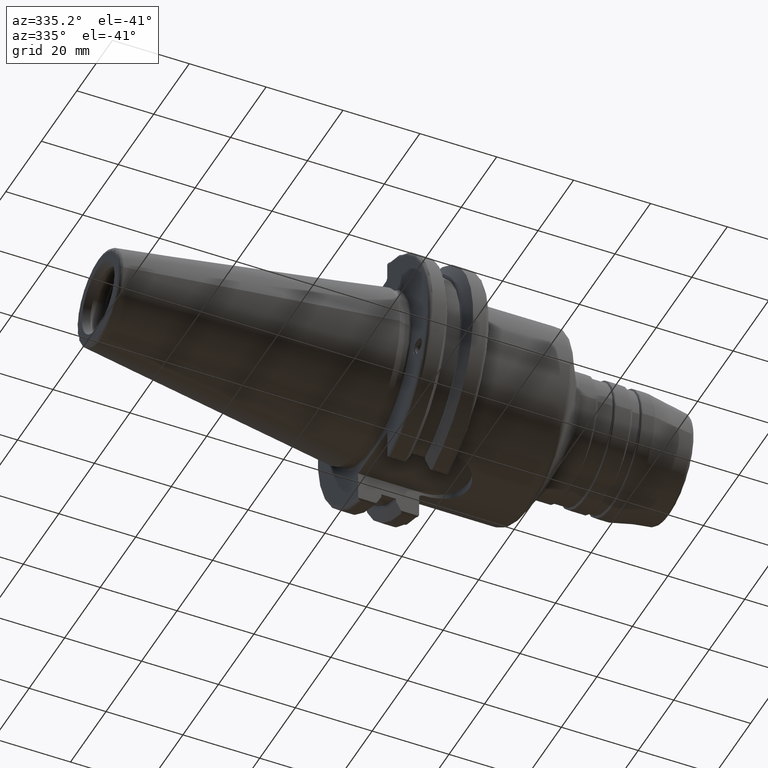
[diagram: clean part render]
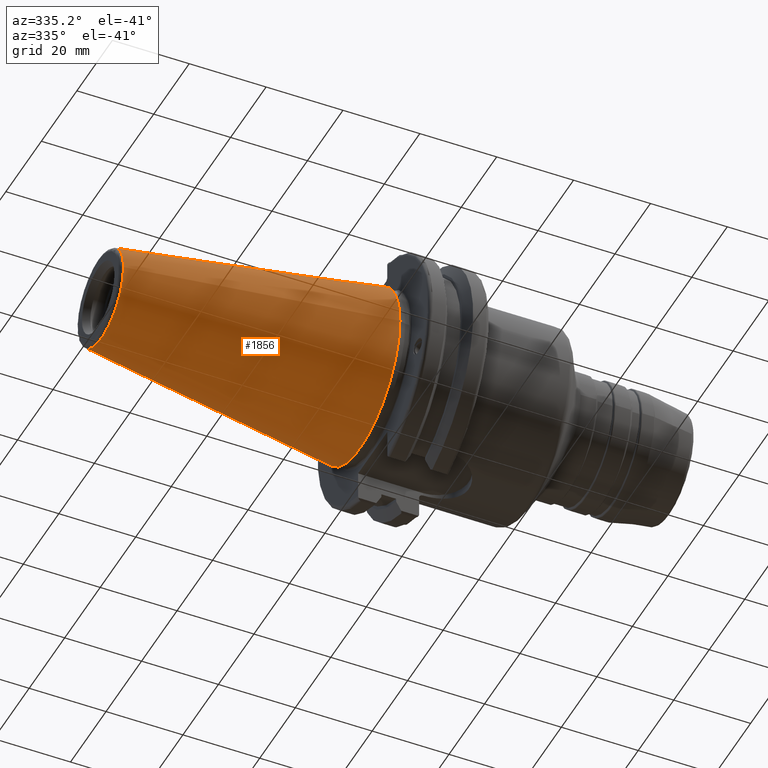
[diagram: same view with one face highlighted and labeled with its STEP entity id]
A machine part, auxiliary view. The second image highlights one B-rep face of the part: STEP entity #1856.
In plain terms, the highlighted conical surface has half-angle 8.297 deg.
Its self-contained STEP definition (entity closure, byte-faithful):
#89=CONICAL_SURFACE('',#2114,17.2484375,0.144812498238939);
#244=FACE_OUTER_BOUND('',#365,.T.);
#365=EDGE_LOOP('',(#1611,#1612,#1613,#1614,#1615));
#472=LINE('',#3563,#566);
#566=VECTOR('',#2653,17.2484375);
#688=CIRCLE('',#2108,12.3966635780937);
#689=CIRCLE('',#2109,12.3966635780937);
#693=CIRCLE('',#2115,22.225);
#875=VERTEX_POINT('',#3550);
#876=VERTEX_POINT('',#3551);
#879=VERTEX_POINT('',#3561);
#1133=EDGE_CURVE('',#875,#876,#688,.T.);
#1134=EDGE_CURVE('',#876,#875,#689,.T.);
#1138=EDGE_CURVE('',#879,#879,#693,.T.);
#1139=EDGE_CURVE('',#879,#876,#472,.T.);
#1611=ORIENTED_EDGE('',*,*,#1138,.F.);
#1612=ORIENTED_EDGE('',*,*,#1139,.T.);
#1613=ORIENTED_EDGE('',*,*,#1133,.F.);
#1614=ORIENTED_EDGE('',*,*,#1134,.F.);
#1615=ORIENTED_EDGE('',*,*,#1139,.F.);
#1856=ADVANCED_FACE('',(#244),#89,.T.);
#2108=AXIS2_PLACEMENT_3D('',#3552,#2637,#2638);
#2109=AXIS2_PLACEMENT_3D('',#3553,#2639,#2640);
#2114=AXIS2_PLACEMENT_3D('',#3560,#2649,#2650);
#2115=AXIS2_PLACEMENT_3D('',#3562,#2651,#2652);
#2637=DIRECTION('center_axis',(-1.,0.,0.));
#2638=DIRECTION('ref_axis',(0.,-1.,3.06161699786838E-17));
#2639=DIRECTION('center_axis',(-1.,0.,0.));
#2640=DIRECTION('ref_axis',(0.,-1.,3.06161699786838E-17));
#2649=DIRECTION('center_axis',(1.,0.,0.));
#2650=DIRECTION('ref_axis',(0.,1.,0.));
#2651=DIRECTION('center_axis',(1.,0.,0.));
#2652=DIRECTION('ref_axis',(0.,0.,-1.));
#2653=DIRECTION('',(-0.989532981063282,0.144306893071729,1.76724974695192E-17));
#3550=CARTESIAN_POINT('',(-67.3943068930717,-1.5181534371019E-15,12.3966635780937));
#3551=CARTESIAN_POINT('',(-67.3943068930718,-12.3966635780937,-1.5181534371019E-15));
#3552=CARTESIAN_POINT('Origin',(-67.3943068930717,0.,-1.89769179637738E-15));
#3553=CARTESIAN_POINT('Origin',(-67.3943068930717,0.,-1.89769179637738E-15));
#3560=CARTESIAN_POINT('Origin',(-34.125,0.,0.));
#3561=CARTESIAN_POINT('',(0.,-22.225,-2.72177751110499E-15));
#3562=CARTESIAN_POINT('Origin',(0.,0.,0.));
#3563=CARTESIAN_POINT('',(-34.125,-17.2484375,-2.11232437746682E-15));